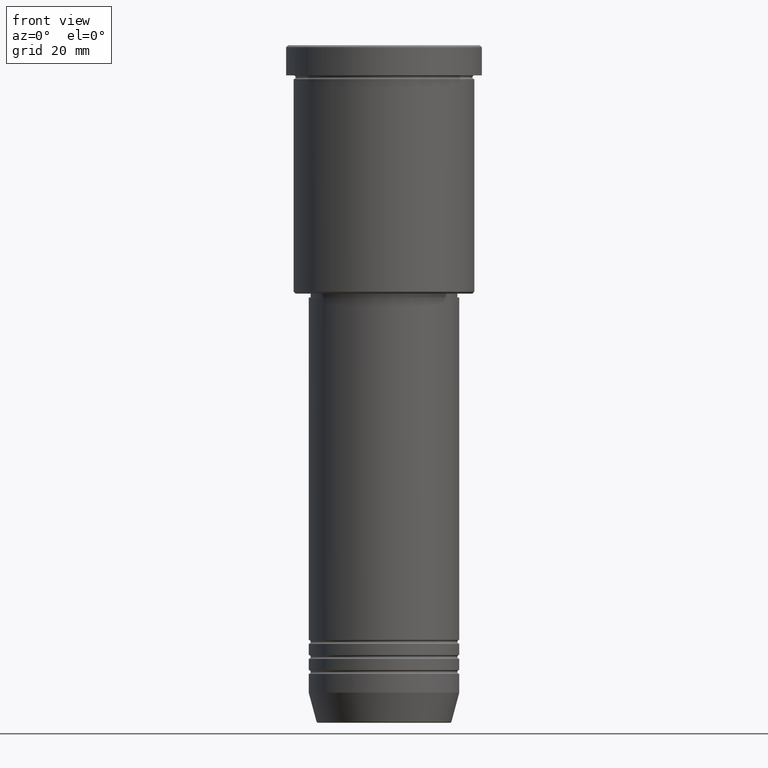
[diagram: clean part render]
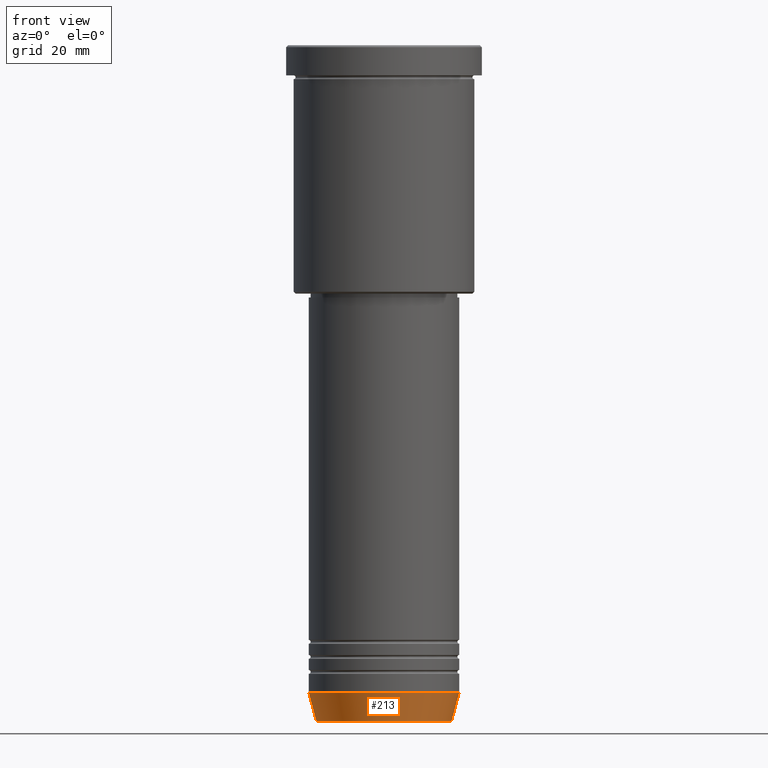
[diagram: same view with one face highlighted and labeled with its STEP entity id]
A machine part, front view. The second image highlights one B-rep face of the part: STEP entity #213.
In plain terms, the highlighted conical surface has half-angle 15 deg.
Its self-contained STEP definition (entity closure, byte-faithful):
#43 = LINE ( 'NONE', #772, #600 ) ;
#49 = ORIENTED_EDGE ( 'NONE', *, *, #1054, .T. ) ;
#90 = VERTEX_POINT ( 'NONE', #904 ) ;
#174 = EDGE_CURVE ( 'NONE', #90, #449, #1031, .T. ) ;
#184 = VECTOR ( 'NONE', #467, 1000.000000000000000 ) ;
#213 = ADVANCED_FACE ( 'NONE', ( #538 ), #914, .T. ) ;
#217 = AXIS2_PLACEMENT_3D ( 'NONE', #642, #716, #1009 ) ;
#238 = CIRCLE ( 'NONE', #803, 20.00000000000000355 ) ;
#344 = CARTESIAN_POINT ( 'NONE',  ( 0.000000000000000000, 0.000000000000000000, -172.0000000000000000 ) ) ;
#394 = EDGE_CURVE ( 'NONE', #90, #1007, #712, .T. ) ;
#405 = ORIENTED_EDGE ( 'NONE', *, *, #1138, .F. ) ;
#441 = DIRECTION ( 'NONE',  ( 1.000000000000000000, 0.000000000000000000, 0.000000000000000000 ) ) ;
#443 = CARTESIAN_POINT ( 'NONE',  ( 17.95570587970607690, 0.000000000000000000, -179.6294095225512706 ) ) ;
#449 = VERTEX_POINT ( 'NONE', #443 ) ;
#467 = DIRECTION ( 'NONE',  ( -0.2588190451025213501, 3.169619151431772337E-17, 0.9659258262890680902 ) ) ;
#508 = CARTESIAN_POINT ( 'NONE',  ( 20.00000000000000355, 0.000000000000000000, -172.0000000000000000 ) ) ;
#538 = FACE_OUTER_BOUND ( 'NONE', #709, .T. ) ;
#587 = ORIENTED_EDGE ( 'NONE', *, *, #174, .T. ) ;
#600 = VECTOR ( 'NONE', #1152, 1000.000000000000000 ) ;
#637 = CARTESIAN_POINT ( 'NONE',  ( -20.00000000000000355, 2.449293598294706907E-15, -172.0000000000000000 ) ) ;
#642 = CARTESIAN_POINT ( 'NONE',  ( 0.000000000000000000, 0.000000000000000000, -179.6294095225512706 ) ) ;
#709 = EDGE_LOOP ( 'NONE', ( #967, #587, #49, #405 ) ) ;
#712 = LINE ( 'NONE', #637, #184 ) ;
#716 = DIRECTION ( 'NONE',  ( -0.000000000000000000, -0.000000000000000000, 1.000000000000000000 ) ) ;
#772 = CARTESIAN_POINT ( 'NONE',  ( 20.00000000000000355, 0.000000000000000000, -172.0000000000000000 ) ) ;
#778 = AXIS2_PLACEMENT_3D ( 'NONE', #1165, #970, #976 ) ;
#803 = AXIS2_PLACEMENT_3D ( 'NONE', #344, #1076, #441 ) ;
#904 = CARTESIAN_POINT ( 'NONE',  ( -17.95570587970607690, 2.324116685748021371E-15, -179.6294095225512706 ) ) ;
#914 = CONICAL_SURFACE ( 'NONE', #778, 20.00000000000000355, 0.2617993877991500740 ) ;
#937 = CARTESIAN_POINT ( 'NONE',  ( -20.00000000000000355, 2.449293598294706907E-15, -172.0000000000000000 ) ) ;
#967 = ORIENTED_EDGE ( 'NONE', *, *, #394, .F. ) ;
#970 = DIRECTION ( 'NONE',  ( -0.000000000000000000, -0.000000000000000000, 1.000000000000000000 ) ) ;
#976 = DIRECTION ( 'NONE',  ( 1.000000000000000000, 0.000000000000000000, 0.000000000000000000 ) ) ;
#1007 = VERTEX_POINT ( 'NONE', #937 ) ;
#1009 = DIRECTION ( 'NONE',  ( 1.000000000000000000, 0.000000000000000000, 0.000000000000000000 ) ) ;
#1031 = CIRCLE ( 'NONE', #217, 17.95570587970607690 ) ;
#1051 = VERTEX_POINT ( 'NONE', #508 ) ;
#1054 = EDGE_CURVE ( 'NONE', #449, #1051, #43, .T. ) ;
#1076 = DIRECTION ( 'NONE',  ( -0.000000000000000000, -0.000000000000000000, 1.000000000000000000 ) ) ;
#1138 = EDGE_CURVE ( 'NONE', #1007, #1051, #238, .T. ) ;
#1152 = DIRECTION ( 'NONE',  ( 0.2588190451025213501, 0.000000000000000000, 0.9659258262890680902 ) ) ;
#1165 = CARTESIAN_POINT ( 'NONE',  ( 0.000000000000000000, 0.000000000000000000, -172.0000000000000000 ) ) ;